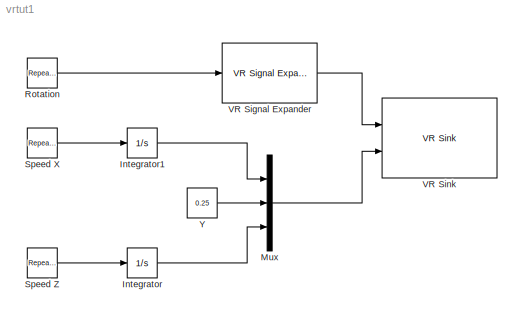
MODEL vrtut1
KIND model
BLOCK [Integrator] Integrator
  LowerSaturationLimit = -Inf
  Ports = [1, 1]
  UpperSaturationLimit = Inf
  ZeroCross = off
BLOCK [Integrator] Integrator1
  InitialCondition = 3
  LowerSaturationLimit = -Inf
  Ports = [1, 1]
  UpperSaturationLimit = Inf
  ZeroCross = off
BLOCK [Mux] Mux
  DisplayOption = bar
  Inputs = 3
  Ports = [3, 1]
BLOCK [Reference] Rotation  REF=simulink/Sources/Repeating\nSequence
  Ports = [0, 1]
  ShowPortLabels = on
  SourceBlock = simulink/Sources/Repeating\nSequence
  SourceType = Repeating table
  rep_seq_t = [0 20 22 80 82 100]
  rep_seq_y = [-1.57 -1.57 -0.7 -0.7 0 0]
BLOCK [Reference] Speed X  REF=simulink/Sources/Repeating\nSequence
  Ports = [0, 1]
  ShowPortLabels = on
  SourceBlock = simulink/Sources/Repeating\nSequence
  SourceType = Repeating table
  rep_seq_t = [0 20 22 80 82 100]
  rep_seq_y = [0 0 0.33 0.33 0.7 0.7]
BLOCK [Reference] Speed Z  REF=simulink/Sources/Repeating\nSequence
  Ports = [0, 1]
  ShowPortLabels = on
  SourceBlock = simulink/Sources/Repeating\nSequence
  SourceType = Repeating table
  rep_seq_t = [0 20 22 80 82 100]
  rep_seq_y = [0.55 0.55 0.24 0.24 0 0]
BLOCK [Reference] VR Signal Expander  REF=vrlib/VR Signal Expander
  Ports = [1, 1]
  ShowPortLabels = on
  SourceBlock = vrlib/VR Signal Expander
  SourceType = VR Signal Expander
  outidx = 4
  outwidth = 4
BLOCK [Reference] VR Sink  REF=vrlib/VR Sink
  AutoView = on
  FieldsWritten = Automobile.rotation.4.1.double#Automobile.translation.3.1.double
  Ports = [2]
  RemoteChange = off
  RemoteView = off
  SampleTime = 0.2
  SourceBlock = vrlib/VR Sink
  SourceType = Virtual Reality Sink
  ViewEnable = on
  WorldFileName = vrmount.wrl
BLOCK [Constant] Y
  Value = 0.25
LINE Integrator1:1 -> Mux:1
LINE Integrator:1 -> Mux:3
LINE Mux:1 -> VR Sink:2
LINE Rotation:1 -> VR Signal Expander:1
LINE Speed X:1 -> Integrator1:1
LINE Speed Z:1 -> Integrator:1
LINE VR Signal Expander:1 -> VR Sink:1
LINE Y:1 -> Mux:2
